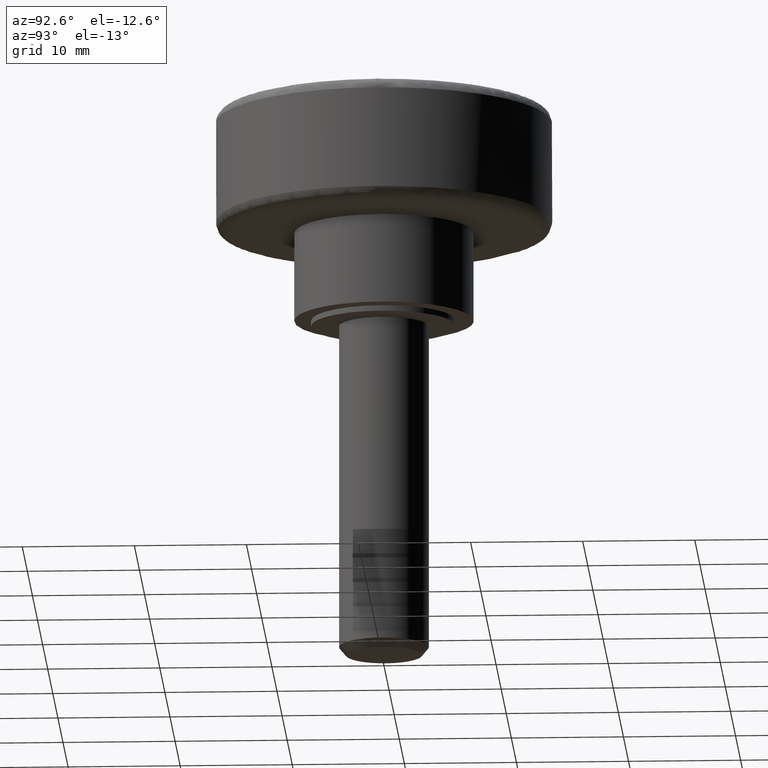
[diagram: clean part render]
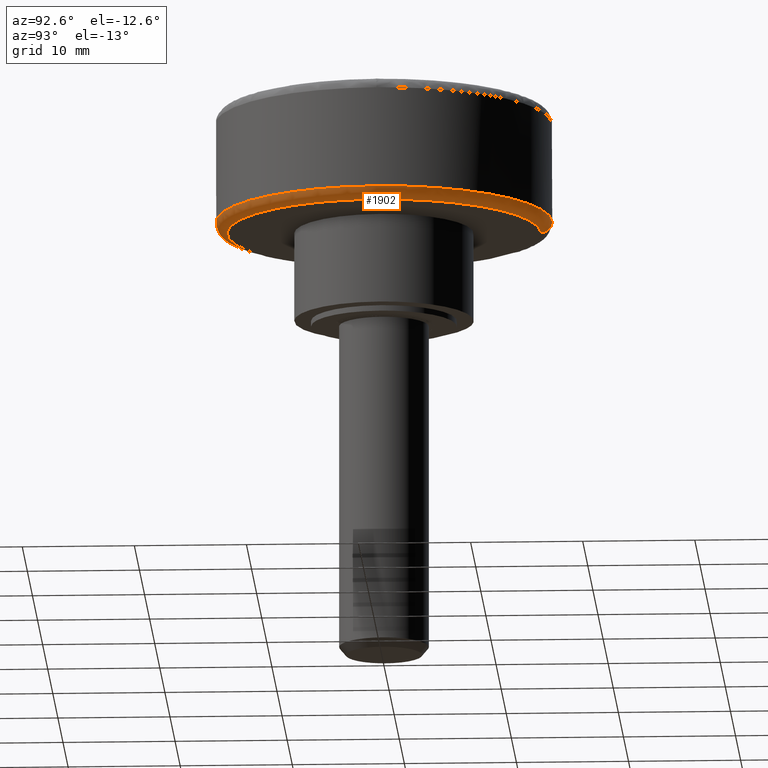
[diagram: same view with one face highlighted and labeled with its STEP entity id]
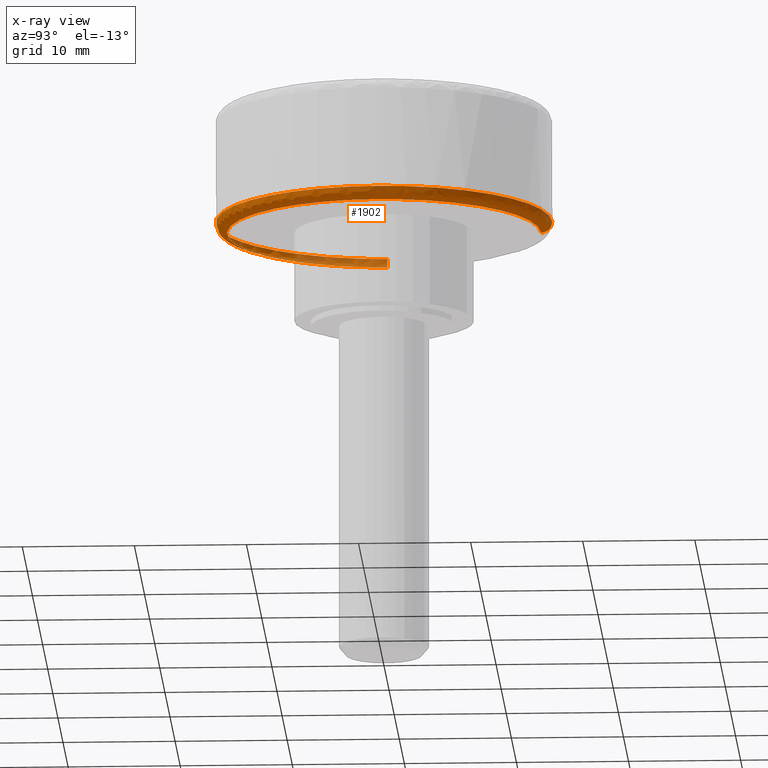
[diagram: x-ray of the same camera — body ghosted, the highlighted face saturated]
A machine part, auxiliary view. The second image highlights one B-rep face of the part: STEP entity #1902.
The next image is the same camera in x-ray: the body ghosted, the highlighted face saturated — about 13% of this face is hidden behind the body in this view.
In plain terms, the highlighted face is a freeform B-spline surface patch.
Its self-contained STEP definition (entity closure, byte-faithful):
#1599=CARTESIAN_POINT('',(-0.376951431651206,14.995262839249470,9.499999999703643));
#1600=VERTEX_POINT('',#1599);
#1670=CARTESIAN_POINT('',(-9.131418822630982,-11.900302109009131,9.499999999937154));
#1671=VERTEX_POINT('',#1670);
#1677=CARTESIAN_POINT('',(15.0,0.0,9.500000000000000));
#1678=VERTEX_POINT('',#1677);
#1679=CARTESIAN_POINT('',(15.0,0.0,9.500000000000000));
#1680=CARTESIAN_POINT('',(14.999999999999996,-14.999999999999996,9.500000000000000));
#1681=CARTESIAN_POINT('',(0.0,-15.0,9.500000000000000));
#1682=CARTESIAN_POINT('',(-5.091812046735051,-15.0,9.499999999999998));
#1683=CARTESIAN_POINT('',(-9.131418822630982,-11.900302109009132,9.499999999937154));
#1691=(BOUNDED_CURVE()B_SPLINE_CURVE(2,(#1679,#1680,#1681,#1682,#1683),.UNSPECIFIED.,.F.,.U.)B_SPLINE_CURVE_WITH_KNOTS((3,2,3),(0.500000000000000,0.750000000000000,0.855220477126161),.UNSPECIFIED.)CURVE()GEOMETRIC_REPRESENTATION_ITEM()RATIONAL_B_SPLINE_CURVE((1.0,0.707106781186547,1.0,0.876726543077726,0.857220221790275))REPRESENTATION_ITEM(''));
#1692=EDGE_CURVE('',#1678,#1671,#1691,.T.);
#1694=CARTESIAN_POINT('',(-0.376951431651206,14.995262839249470,9.499999999703643));
#1695=CARTESIAN_POINT('',(-0.188505481851839,15.000000000000002,9.499999999999998));
#1696=CARTESIAN_POINT('',(0.0,15.0,9.500000000000000));
#1697=CARTESIAN_POINT('',(14.999999999999996,14.999999999999996,9.500000000000000));
#1698=CARTESIAN_POINT('',(15.0,0.0,9.500000000000000));
#1706=(BOUNDED_CURVE()B_SPLINE_CURVE(2,(#1694,#1695,#1696,#1697,#1698),.UNSPECIFIED.,.F.,.U.)B_SPLINE_CURVE_WITH_KNOTS((3,2,3),(0.245579891769781,0.250000000000000,0.500000000000000),.UNSPECIFIED.)CURVE()GEOMETRIC_REPRESENTATION_ITEM()RATIONAL_B_SPLINE_CURVE((0.989826157681516,0.994821521091789,1.0,0.707106781186547,1.0))REPRESENTATION_ITEM(''));
#1707=EDGE_CURVE('',#1600,#1678,#1706,.T.);
#1745=CARTESIAN_POINT('',(-14.995262839249470,-0.376951431651065,9.499999999703498));
#1746=VERTEX_POINT('',#1745);
#1760=CARTESIAN_POINT('',(-9.131418822630982,-11.900302109009132,9.499999999937154));
#1761=CARTESIAN_POINT('',(-14.815223843579286,-7.538967104483621,9.499999999848717));
#1762=CARTESIAN_POINT('',(-14.995262839249474,-0.376951431651065,9.499999999703498));
#1770=(BOUNDED_CURVE()B_SPLINE_CURVE(2,(#1760,#1761,#1762),.UNSPECIFIED.,.F.,.U.)B_SPLINE_CURVE_WITH_KNOTS((3,3),(0.855220477126161,0.995579891769784),.UNSPECIFIED.)CURVE()GEOMETRIC_REPRESENTATION_ITEM()RATIONAL_B_SPLINE_CURVE((0.857220221790275,0.831199660844954,0.989826157681523))REPRESENTATION_ITEM(''));
#1771=EDGE_CURVE('',#1671,#1746,#1770,.T.);
#1806=CARTESIAN_POINT('',(-0.376890272703577,14.992829914473205,9.569724198540261));
#1807=CARTESIAN_POINT('',(14.615939641769629,15.369720187176783,9.569724198540262));
#1808=CARTESIAN_POINT('',(14.992829914473205,0.376890272703577,9.569724198540261));
#1809=CARTESIAN_POINT('',(15.369720187176785,-14.615939641769625,9.569724198540262));
#1810=CARTESIAN_POINT('',(0.376890272703582,-14.992829914473205,9.569724198540261));
#1811=CARTESIAN_POINT('',(-14.615939641769621,-15.369720187176785,9.569724198540262));
#1812=CARTESIAN_POINT('',(-14.992829914473205,-0.376890272703583,9.569724198540261));
#1813=CARTESIAN_POINT('',(-0.378905027116878,15.072977565993575,8.422663977687098));
#1814=CARTESIAN_POINT('',(14.694072538876695,15.451882593110451,8.422663977687094));
#1815=CARTESIAN_POINT('',(15.072977565993575,0.378905027116879,8.422663977687098));
#1816=CARTESIAN_POINT('',(15.451882593110454,-14.694072538876688,8.422663977687094));
#1817=CARTESIAN_POINT('',(0.378905027116883,-15.072977565993575,8.422663977687098));
#1818=CARTESIAN_POINT('',(-14.694072538876688,-15.451882593110454,8.422663977687094));
#1819=CARTESIAN_POINT('',(-15.072977565993575,-0.378905027116884,8.422663977687098));
#1820=CARTESIAN_POINT('',(-0.350078542308912,13.926249685070262,8.502407669788964));
#1821=CARTESIAN_POINT('',(13.576171142761353,14.276328227379180,8.502407669788960));
#1822=CARTESIAN_POINT('',(13.926249685070262,0.350078542308913,8.502407669788964));
#1823=CARTESIAN_POINT('',(14.276328227379180,-13.576171142761348,8.502407669788960));
#1824=CARTESIAN_POINT('',(0.350078542308917,-13.926249685070262,8.502407669788964));
#1825=CARTESIAN_POINT('',(-13.576171142761348,-14.276328227379180,8.502407669788960));
#1826=CARTESIAN_POINT('',(-13.926249685070262,-0.350078542308918,8.502407669788964));
#1834=(BOUNDED_SURFACE()B_SPLINE_SURFACE(2,2,((#1806,#1813,#1820),(#1807,#1814,#1821),(#1808,#1815,#1822),(#1809,#1816,#1823),(#1810,#1817,#1824),(#1811,#1818,#1825),(#1812,#1819,#1826)),.UNSPECIFIED.,.F.,.F.,.U.)B_SPLINE_SURFACE_WITH_KNOTS((3,2,2,3),(3,3),(0.0,24.848781467195689,49.697562934391371,74.546344401587049),(0.0,1.822370696087853),.UNSPECIFIED.)GEOMETRIC_REPRESENTATION_ITEM()RATIONAL_B_SPLINE_SURFACE(((0.910892947162218,0.599412870471164,0.915966744701400),(0.644098579873404,0.423848905440654,0.647686296519727),(0.910892947162218,0.599412870471164,0.915966744701400),(0.644098579873404,0.423848905440654,0.647686296519727),(0.910892947162218,0.599412870471164,0.915966744701400),(0.644098579873404,0.423848905440654,0.647686296519727),(0.910892947162218,0.599412870471164,0.915966744701400)))REPRESENTATION_ITEM('')SURFACE());
#1835=CARTESIAN_POINT('',(-0.351821336334595,13.995578652146250,8.500000000000000));
#1836=VERTEX_POINT('',#1835);
#1837=CARTESIAN_POINT('',(14.0,0.0,8.500000000000000));
#1838=VERTEX_POINT('',#1837);
#1839=CARTESIAN_POINT('',(-0.351821336334595,13.995578652146245,8.500000000000000));
#1840=CARTESIAN_POINT('',(-0.175938449800370,14.000000000000004,8.500000000000000));
#1841=CARTESIAN_POINT('',(0.0,14.0,8.500000000000000));
#1842=CARTESIAN_POINT('',(13.999999999999998,13.999999999999998,8.500000000000000));
#1843=CARTESIAN_POINT('',(14.0,0.0,8.500000000000000));
#1851=(BOUNDED_CURVE()B_SPLINE_CURVE(2,(#1839,#1840,#1841,#1842,#1843),.UNSPECIFIED.,.F.,.U.)B_SPLINE_CURVE_WITH_KNOTS((3,2,3),(0.245579891767982,0.250000000000000,0.500000000000000),.UNSPECIFIED.)CURVE()GEOMETRIC_REPRESENTATION_ITEM()RATIONAL_B_SPLINE_CURVE((0.989826157677449,0.994821521089681,1.0,0.707106781186547,1.0))REPRESENTATION_ITEM(''));
#1852=EDGE_CURVE('',#1836,#1838,#1851,.T.);
#1853=ORIENTED_EDGE('',*,*,#1852,.F.);
#1854=CARTESIAN_POINT('',(-0.376951431651206,14.995262839249465,9.499999999703645));
#1855=CARTESIAN_POINT('',(-0.376951431635168,14.995262838656968,8.500000004365147));
#1856=CARTESIAN_POINT('',(-0.351821336334595,13.995578652146245,8.500000000000000));
#1864=(BOUNDED_CURVE()B_SPLINE_CURVE(2,(#1854,#1855,#1856),.UNSPECIFIED.,.F.,.U.)B_SPLINE_CURVE_WITH_KNOTS((3,3),(-1.723441281374518,-0.263586883445596),.UNSPECIFIED.)CURVE()GEOMETRIC_REPRESENTATION_ITEM()RATIONAL_B_SPLINE_CURVE((0.883897566923585,0.626638728143138,0.888510407441738))REPRESENTATION_ITEM(''));
#1865=EDGE_CURVE('',#1600,#1836,#1864,.T.);
#1866=ORIENTED_EDGE('',*,*,#1865,.F.);
#1867=ORIENTED_EDGE('',*,*,#1707,.T.);
#1868=ORIENTED_EDGE('',*,*,#1692,.T.);
#1869=ORIENTED_EDGE('',*,*,#1771,.T.);
#1870=CARTESIAN_POINT('',(-13.995578652007850,-0.351821336325027,8.500000000000000));
#1871=VERTEX_POINT('',#1870);
#1872=CARTESIAN_POINT('',(-14.995262839249472,-0.376951431651065,9.499999999703498));
#1873=CARTESIAN_POINT('',(-14.995262838656677,-0.376951431635159,8.500000004087955));
#1874=CARTESIAN_POINT('',(-13.995578652007847,-0.351821336325027,8.500000000000000));
#1882=(BOUNDED_CURVE()B_SPLINE_CURVE(2,(#1872,#1873,#1874),.UNSPECIFIED.,.F.,.U.)B_SPLINE_CURVE_WITH_KNOTS((3,3),(-1.723441281374217,-0.263586883158713),.UNSPECIFIED.)CURVE()GEOMETRIC_REPRESENTATION_ITEM()RATIONAL_B_SPLINE_CURVE((0.883897566923479,0.626638728092638,0.888510407544661))REPRESENTATION_ITEM(''));
#1883=EDGE_CURVE('',#1746,#1871,#1882,.T.);
#1884=ORIENTED_EDGE('',*,*,#1883,.T.);
#1885=CARTESIAN_POINT('',(14.0,0.0,8.500000000000000));
#1886=CARTESIAN_POINT('',(13.999999999999998,-13.999999999999998,8.500000000000000));
#1887=CARTESIAN_POINT('',(0.0,-14.0,8.500000000000000));
#1888=CARTESIAN_POINT('',(-13.652490266398488,-13.999999999999998,8.500000000000000));
#1889=CARTESIAN_POINT('',(-13.995578652007850,-0.351821336325027,8.500000000000000));
#1897=(BOUNDED_CURVE()B_SPLINE_CURVE(2,(#1885,#1886,#1887,#1888,#1889),.UNSPECIFIED.,.F.,.U.)B_SPLINE_CURVE_WITH_KNOTS((3,2,3),(0.500000000000000,0.750000000000000,0.995579891768134),.UNSPECIFIED.)CURVE()GEOMETRIC_REPRESENTATION_ITEM()RATIONAL_B_SPLINE_CURVE((1.0,0.707106781186547,1.0,0.712285260096687,0.989826157677794))REPRESENTATION_ITEM(''));
#1898=EDGE_CURVE('',#1838,#1871,#1897,.T.);
#1899=ORIENTED_EDGE('',*,*,#1898,.F.);
#1900=EDGE_LOOP('',(#1853,#1866,#1867,#1868,#1869,#1884,#1899));
#1901=FACE_OUTER_BOUND('',#1900,.T.);
#1902=ADVANCED_FACE('',(#1901),#1834,.T.);